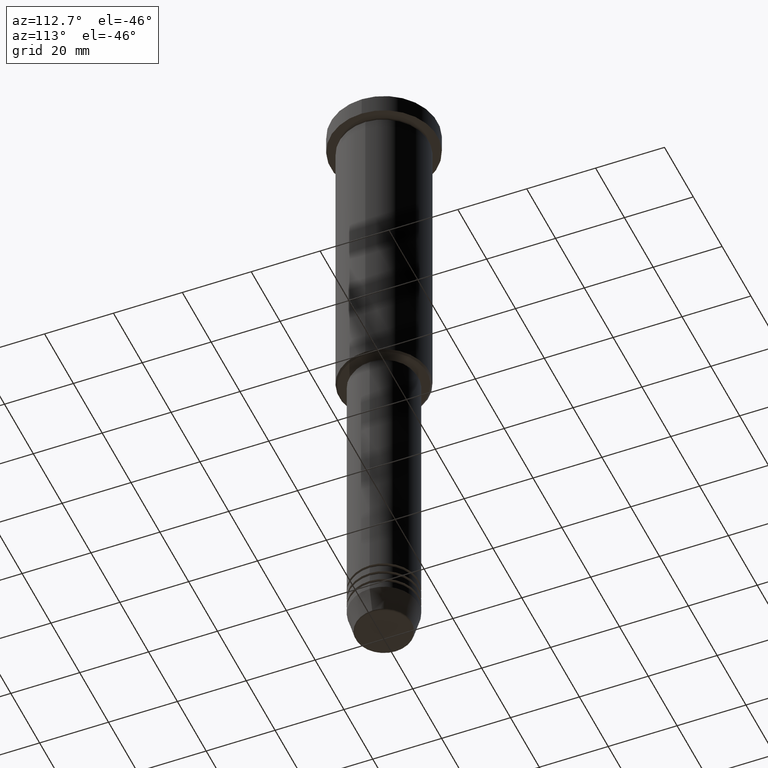
[diagram: clean part render]
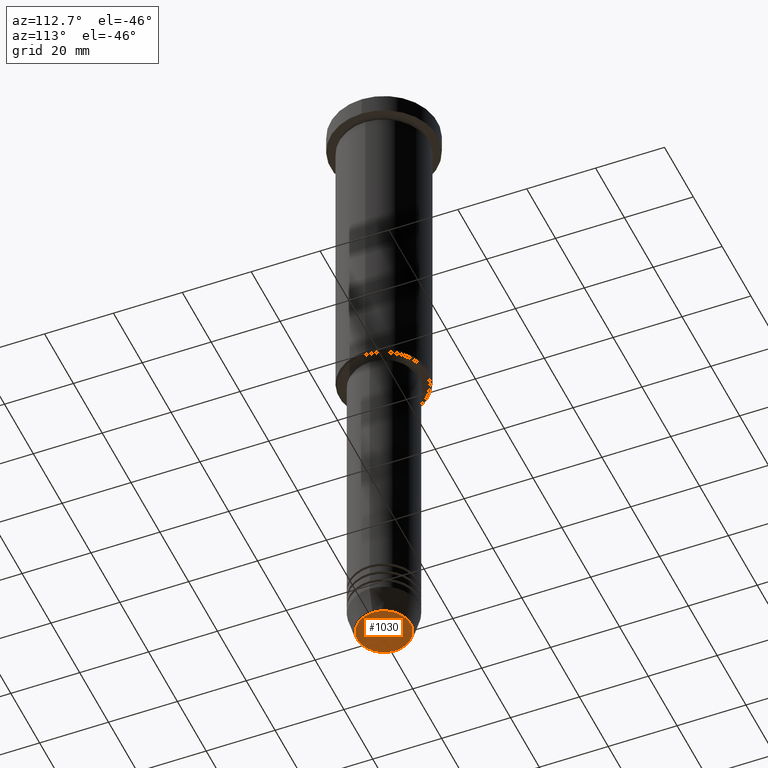
[diagram: same view with one face highlighted and labeled with its STEP entity id]
A machine part, auxiliary view. The second image highlights one B-rep face of the part: STEP entity #1030.
In plain terms, the highlighted planar face has unit normal (0, -0, 1).
Its self-contained STEP definition (entity closure, byte-faithful):
#27 = AXIS2_PLACEMENT_3D ( 'NONE', #1021, #940, #758 ) ;
#38 = VERTEX_POINT ( 'NONE', #783 ) ;
#293 = CIRCLE ( 'NONE', #962, 7.740692158992664496 ) ;
#375 = EDGE_CURVE ( 'NONE', #38, #1034, #392, .T. ) ;
#384 = DIRECTION ( 'NONE',  ( 1.000000000000000000, 0.000000000000000000, 0.000000000000000000 ) ) ;
#392 = CIRCLE ( 'NONE', #726, 7.740692158992664496 ) ;
#429 = EDGE_LOOP ( 'NONE', ( #448, #497 ) ) ;
#448 = ORIENTED_EDGE ( 'NONE', *, *, #375, .T. ) ;
#497 = ORIENTED_EDGE ( 'NONE', *, *, #1129, .T. ) ;
#503 = CARTESIAN_POINT ( 'NONE',  ( 0.000000000000000000, 0.000000000000000000, -191.0000000000000000 ) ) ;
#521 = DIRECTION ( 'NONE',  ( 0.000000000000000000, 0.000000000000000000, -1.000000000000000000 ) ) ;
#660 = DIRECTION ( 'NONE',  ( 0.000000000000000000, 0.000000000000000000, -1.000000000000000000 ) ) ;
#726 = AXIS2_PLACEMENT_3D ( 'NONE', #1114, #660, #384 ) ;
#758 = DIRECTION ( 'NONE',  ( 1.000000000000000000, 0.000000000000000000, 0.000000000000000000 ) ) ;
#768 = PLANE ( 'NONE',  #27 ) ;
#783 = CARTESIAN_POINT ( 'NONE',  ( 7.740692158992664496, 0.000000000000000000, -191.0000000000000000 ) ) ;
#799 = DIRECTION ( 'NONE',  ( 1.000000000000000000, 0.000000000000000000, 0.000000000000000000 ) ) ;
#937 = FACE_OUTER_BOUND ( 'NONE', #429, .T. ) ;
#940 = DIRECTION ( 'NONE',  ( 0.000000000000000000, -0.000000000000000000, 1.000000000000000000 ) ) ;
#962 = AXIS2_PLACEMENT_3D ( 'NONE', #503, #521, #799 ) ;
#1021 = CARTESIAN_POINT ( 'NONE',  ( 0.000000000000000000, 0.000000000000000000, -191.0000000000000000 ) ) ;
#1030 = ADVANCED_FACE ( 'NONE', ( #937 ), #768, .F. ) ;
#1034 = VERTEX_POINT ( 'NONE', #1124 ) ;
#1114 = CARTESIAN_POINT ( 'NONE',  ( 0.000000000000000000, 0.000000000000000000, -191.0000000000000000 ) ) ;
#1124 = CARTESIAN_POINT ( 'NONE',  ( -7.740692158992664496, 9.775343368540048996E-16, -191.0000000000000000 ) ) ;
#1129 = EDGE_CURVE ( 'NONE', #1034, #38, #293, .T. ) ;